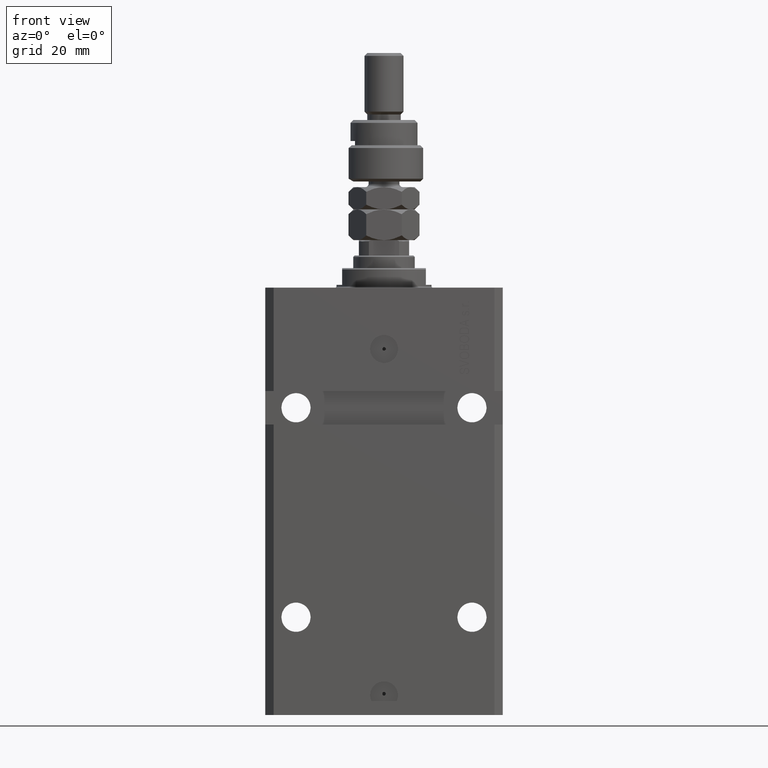
[diagram: clean part render]
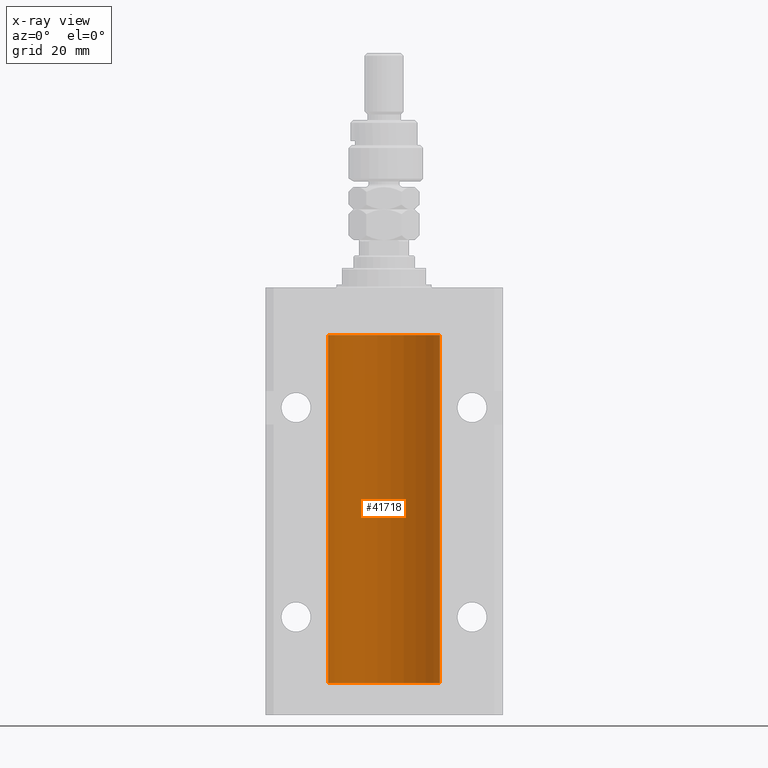
[diagram: x-ray — body ghosted, one internal face saturated and labeled with its STEP entity id]
A machine part, front view, then the same camera in x-ray: the body is ghosted and one INTERNAL B-rep face — a face not visible from any outside direction — is saturated and labeled: STEP entity #41718.
In plain terms, the highlighted cylindrical surface (partial cylindrical patch) has radius 20 mm, axis along (0, 0, 1).
Its self-contained STEP definition (entity closure, byte-faithful):
#868 = VERTEX_POINT ( 'NONE', #7014 ) ;
#1134 = CARTESIAN_POINT ( 'NONE',  ( -20.00000000000000000, -1.756252550797319649E-14, -138.3749999999999716 ) ) ;
#1571 = DIRECTION ( 'NONE',  ( -0.000000000000000000, -0.000000000000000000, 1.000000000000000000 ) ) ;
#1599 = CARTESIAN_POINT ( 'NONE',  ( -19.99769349528941120, 0.3253804398728645242, -24.55855820727680339 ) ) ;
#3354 = DIRECTION ( 'NONE',  ( 1.000000000000000000, 0.000000000000000000, 0.000000000000000000 ) ) ;
#4841 = DIRECTION ( 'NONE',  ( 0.000000000000000000, 0.000000000000000000, 1.000000000000000000 ) ) ;
#5189 = LINE ( 'NONE', #9552, #35541 ) ;
#5532 = EDGE_LOOP ( 'NONE', ( #47672, #28392, #34182, #44655, #19842, #29597, #49668, #16956 ) ) ;
#5787 = CARTESIAN_POINT ( 'NONE',  ( -19.99253506710755346, 0.5587120480776690545, -139.3251162083025463 ) ) ;
#6043 = CARTESIAN_POINT ( 'NONE',  ( -20.00000000000000000, -1.756252550797319649E-14, -138.3749999999999716 ) ) ;
#6146 = VERTEX_POINT ( 'NONE', #12909 ) ;
#7014 = CARTESIAN_POINT ( 'NONE',  ( -20.00000000000000000, 2.449293598294706513E-15, -141.5999999999999943 ) ) ;
#7084 = VECTOR ( 'NONE', #9329, 1000.000000000000000 ) ;
#7971 = CARTESIAN_POINT ( 'NONE',  ( -20.00000000000000000, -2.867584836844214272E-15, -23.37500000000000000 ) ) ;
#8384 = CIRCLE ( 'NONE', #37184, 20.00000000000000000 ) ;
#9329 = DIRECTION ( 'NONE',  ( -0.000000000000000000, -0.000000000000000000, 1.000000000000000000 ) ) ;
#9450 = CARTESIAN_POINT ( 'NONE',  ( 20.00000000000000000, 0.000000000000000000, -17.00000000000000000 ) ) ;
#9552 = CARTESIAN_POINT ( 'NONE',  ( -20.00000000000000000, 2.449293598294706513E-15, -141.5999999999999943 ) ) ;
#10093 = CARTESIAN_POINT ( 'NONE',  ( -19.99253506710754991, 0.5587120480776751608, -24.32511620830248589 ) ) ;
#10399 = CARTESIAN_POINT ( 'NONE',  ( -19.99023380173166231, 0.6249420416828387337, -138.8367079305639606 ) ) ;
#10650 = CARTESIAN_POINT ( 'NONE',  ( -19.99999999999999645, 0.1631688615953307553, -139.6249999999998010 ) ) ;
#12909 = CARTESIAN_POINT ( 'NONE',  ( -20.00000000000010303, 3.580159249456421507E-13, -139.6250000000033253 ) ) ;
#13691 = CARTESIAN_POINT ( 'NONE',  ( -19.99638934703457593, 0.3843678041337688644, -23.50046362978100944 ) ) ;
#13745 = VERTEX_POINT ( 'NONE', #18174 ) ;
#14004 = CARTESIAN_POINT ( 'NONE',  ( -19.99256581701871482, 0.5573276956901845880, -138.6734856577095059 ) ) ;
#14682 = DIRECTION ( 'NONE',  ( 0.000000000000000000, 0.000000000000000000, 1.000000000000000000 ) ) ;
#15825 = LINE ( 'NONE', #35176, #32774 ) ;
#16590 = VERTEX_POINT ( 'NONE', #7971 ) ;
#16673 = CARTESIAN_POINT ( 'NONE',  ( 0.000000000000000000, 0.000000000000000000, -141.5999999999999943 ) ) ;
#16956 = ORIENTED_EDGE ( 'NONE', *, *, #41585, .T. ) ;
#17173 = EDGE_CURVE ( 'NONE', #868, #6146, #15825, .T. ) ;
#18048 = DIRECTION ( 'NONE',  ( -0.000000000000000000, -0.000000000000000000, 1.000000000000000000 ) ) ;
#18174 = CARTESIAN_POINT ( 'NONE',  ( -20.00000000000010303, 3.580159282543646009E-13, -24.62500000000332889 ) ) ;
#18214 = EDGE_CURVE ( 'NONE', #34078, #42261, #38862, .T. ) ;
#18360 = DIRECTION ( 'NONE',  ( 1.000000000000000000, 0.000000000000000000, 0.000000000000000000 ) ) ;
#19842 = ORIENTED_EDGE ( 'NONE', *, *, #25142, .F. ) ;
#20913 = CARTESIAN_POINT ( 'NONE',  ( -19.99947377218718714, 0.1636439183262877461, -23.39126364004656011 ) ) ;
#20921 = LINE ( 'NONE', #36905, #7084 ) ;
#21723 = EDGE_CURVE ( 'NONE', #16590, #13745, #43722, .T. ) ;
#21984 = CARTESIAN_POINT ( 'NONE',  ( -19.99769349528941120, 0.3253804398728610270, -139.5585582072767750 ) ) ;
#22237 = DIRECTION ( 'NONE',  ( -0.000000000000000000, -0.000000000000000000, 1.000000000000000000 ) ) ;
#22270 = CIRCLE ( 'NONE', #49413, 20.00000000000000000 ) ;
#22513 = EDGE_CURVE ( 'NONE', #34078, #868, #22270, .T. ) ;
#25142 = EDGE_CURVE ( 'NONE', #16590, #36082, #5189, .T. ) ;
#25207 = EDGE_CURVE ( 'NONE', #42261, #36082, #8384, .T. ) ;
#25860 = CARTESIAN_POINT ( 'NONE',  ( 0.000000000000000000, 0.000000000000000000, -141.5999999999999943 ) ) ;
#26285 = CARTESIAN_POINT ( 'NONE',  ( 0.000000000000000000, 0.000000000000000000, -17.00000000000000000 ) ) ;
#26664 = DIRECTION ( 'NONE',  ( -0.000000000000000000, -0.000000000000000000, 1.000000000000000000 ) ) ;
#27801 = AXIS2_PLACEMENT_3D ( 'NONE', #25860, #22237, #18360 ) ;
#28392 = ORIENTED_EDGE ( 'NONE', *, *, #22513, .F. ) ;
#29160 = CARTESIAN_POINT ( 'NONE',  ( -20.00000000000010303, 3.580159282543646009E-13, -24.62500000000332889 ) ) ;
#29597 = ORIENTED_EDGE ( 'NONE', *, *, #21723, .T. ) ;
#30352 = VECTOR ( 'NONE', #18048, 1000.000000000000000 ) ;
#32774 = VECTOR ( 'NONE', #26664, 1000.000000000000000 ) ;
#33043 = CARTESIAN_POINT ( 'NONE',  ( -19.99023018003212471, 0.6250578794725500931, -24.16284809704970371 ) ) ;
#33543 = CARTESIAN_POINT ( 'NONE',  ( -19.99999999999999645, 0.08259581631026780002, -23.37500000000000000 ) ) ;
#33844 = CARTESIAN_POINT ( 'NONE',  ( 20.00000000000000000, 0.000000000000000000, -141.5999999999999943 ) ) ;
#34078 = VERTEX_POINT ( 'NONE', #33844 ) ;
#34182 = ORIENTED_EDGE ( 'NONE', *, *, #18214, .T. ) ;
#34693 = VERTEX_POINT ( 'NONE', #1134 ) ;
#35176 = CARTESIAN_POINT ( 'NONE',  ( -20.00000000000000000, 2.449293598294706513E-15, -141.5999999999999943 ) ) ;
#35541 = VECTOR ( 'NONE', #1571, 1000.000000000000000 ) ;
#35641 = B_SPLINE_CURVE_WITH_KNOTS ( 'NONE', 3,
 ( #6043, #37710, #37966, #49536, #45929, #14004, #10399, #49287, #5787, #21984, #10650, #37214 ),
 .UNSPECIFIED., .F., .F.,
 ( 4, 2, 2, 2, 2, 4 ),
 ( 5.247116368830962784E-19, 0.0002442693137305545852, 0.0004885386274611086283, 0.0009770772549221576255, 0.001465615882383206840, 0.001954154509844256270 ),
 .UNSPECIFIED. ) ;
#36082 = VERTEX_POINT ( 'NONE', #50830 ) ;
#36638 = CARTESIAN_POINT ( 'NONE',  ( -19.99766197842594906, 0.3150331617867667688, -23.45402070102505476 ) ) ;
#36905 = CARTESIAN_POINT ( 'NONE',  ( -20.00000000000000000, 2.449293598294706513E-15, -141.5999999999999943 ) ) ;
#37184 = AXIS2_PLACEMENT_3D ( 'NONE', #26285, #14682, #3354 ) ;
#37214 = CARTESIAN_POINT ( 'NONE',  ( -20.00000000000010303, 3.580159249456421507E-13, -139.6250000000033253 ) ) ;
#37461 = FACE_OUTER_BOUND ( 'NONE', #5532, .T. ) ;
#37652 = EDGE_CURVE ( 'NONE', #34693, #13745, #20921, .T. ) ;
#37710 = CARTESIAN_POINT ( 'NONE',  ( -20.00000000000000000, 0.08259581631025542103, -138.3749999999999716 ) ) ;
#37966 = CARTESIAN_POINT ( 'NONE',  ( -19.99947377218718358, 0.1636439183262808073, -138.3912636400466170 ) ) ;
#38862 = LINE ( 'NONE', #42710, #30352 ) ;
#41311 = CYLINDRICAL_SURFACE ( 'NONE', #27801, 20.00000000000000000 ) ;
#41504 = CARTESIAN_POINT ( 'NONE',  ( -19.99023380173166231, 0.6249420416828462832, -23.83670793056396064 ) ) ;
#41585 = EDGE_CURVE ( 'NONE', #34693, #6146, #35641, .T. ) ;
#41718 = ADVANCED_FACE ( 'NONE', ( #37461 ), #41311, .F. ) ;
#42261 = VERTEX_POINT ( 'NONE', #9450 ) ;
#42710 = CARTESIAN_POINT ( 'NONE',  ( 20.00000000000000000, 0.000000000000000000, -141.5999999999999943 ) ) ;
#43722 = B_SPLINE_CURVE_WITH_KNOTS ( 'NONE', 3,
 ( #45113, #33543, #20913, #36638, #13691, #49484, #41504, #33043, #10093, #1599, #48725, #29160 ),
 .UNSPECIFIED., .F., .F.,
 ( 4, 2, 2, 2, 2, 4 ),
 ( 5.848927291235706941E-19, 0.0002442693137305304075, 0.0004885386274610601645, 0.0009770772549221123059, 0.001465615882383164339, 0.001954154509844215938 ),
 .UNSPECIFIED. ) ;
#44655 = ORIENTED_EDGE ( 'NONE', *, *, #25207, .T. ) ;
#45113 = CARTESIAN_POINT ( 'NONE',  ( -20.00000000000000000, -2.867584836844214272E-15, -23.37500000000000000 ) ) ;
#45929 = CARTESIAN_POINT ( 'NONE',  ( -19.99638934703457238, 0.3843678041337506568, -138.5004636297809952 ) ) ;
#47672 = ORIENTED_EDGE ( 'NONE', *, *, #17173, .F. ) ;
#48094 = DIRECTION ( 'NONE',  ( 1.000000000000000000, 0.000000000000000000, 0.000000000000000000 ) ) ;
#48725 = CARTESIAN_POINT ( 'NONE',  ( -20.00000000000000000, 0.1631688615953320320, -24.62499999999985434 ) ) ;
#49287 = CARTESIAN_POINT ( 'NONE',  ( -19.99023018003212471, 0.6250578794725458742, -139.1628480970496753 ) ) ;
#49413 = AXIS2_PLACEMENT_3D ( 'NONE', #16673, #4841, #48094 ) ;
#49484 = CARTESIAN_POINT ( 'NONE',  ( -19.99256581701871482, 0.5573276956902001311, -23.67348565770948809 ) ) ;
#49536 = CARTESIAN_POINT ( 'NONE',  ( -19.99766197842594195, 0.3150331617867615508, -138.4540207010250299 ) ) ;
#49668 = ORIENTED_EDGE ( 'NONE', *, *, #37652, .F. ) ;
#50830 = CARTESIAN_POINT ( 'NONE',  ( -20.00000000000000000, 2.449293598294706513E-15, -17.00000000000000000 ) ) ;